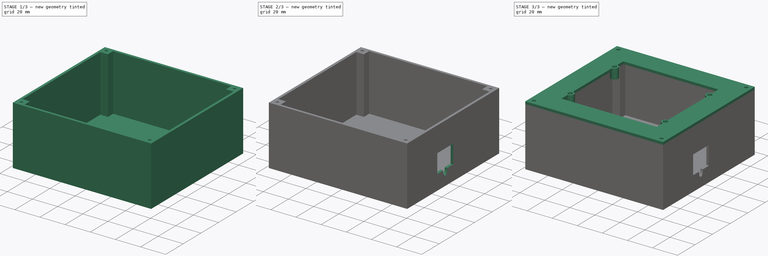
[diagram: build sequence overview — one tinted view per stage of 3, left to right]
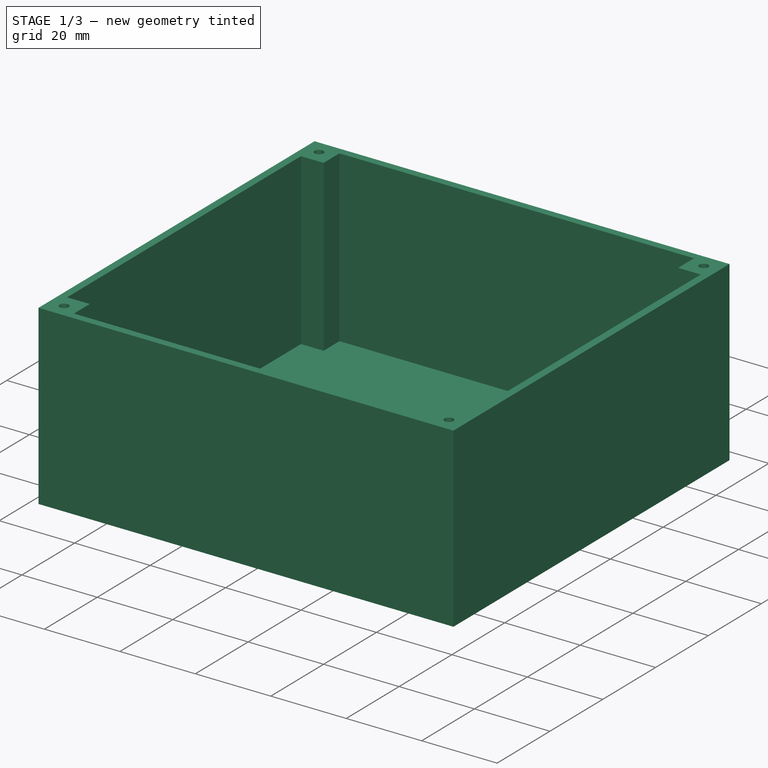
[diagram: stage 1 of 3 — iso view after this stage's code; geometry added in this stage tinted green]
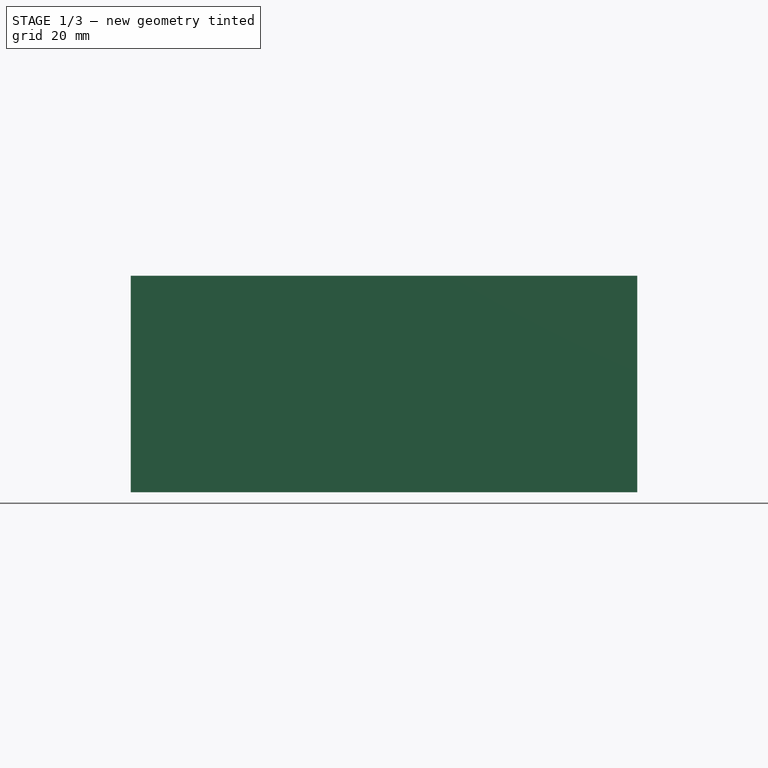
[diagram: stage 1 of 3 — front view after this stage's code; geometry added in this stage tinted green]
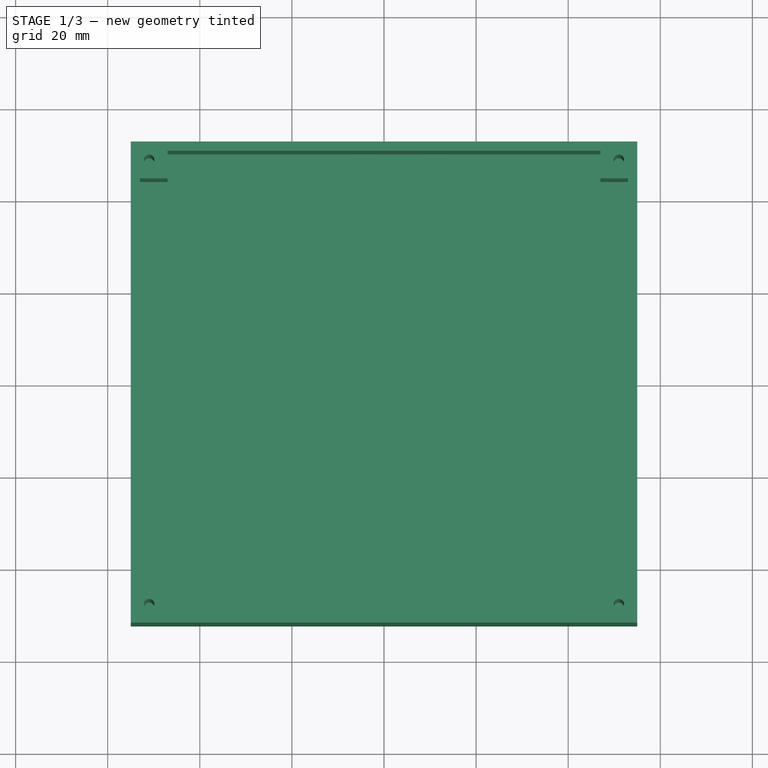
[diagram: stage 1 of 3 — top view after this stage's code; geometry added in this stage tinted green]
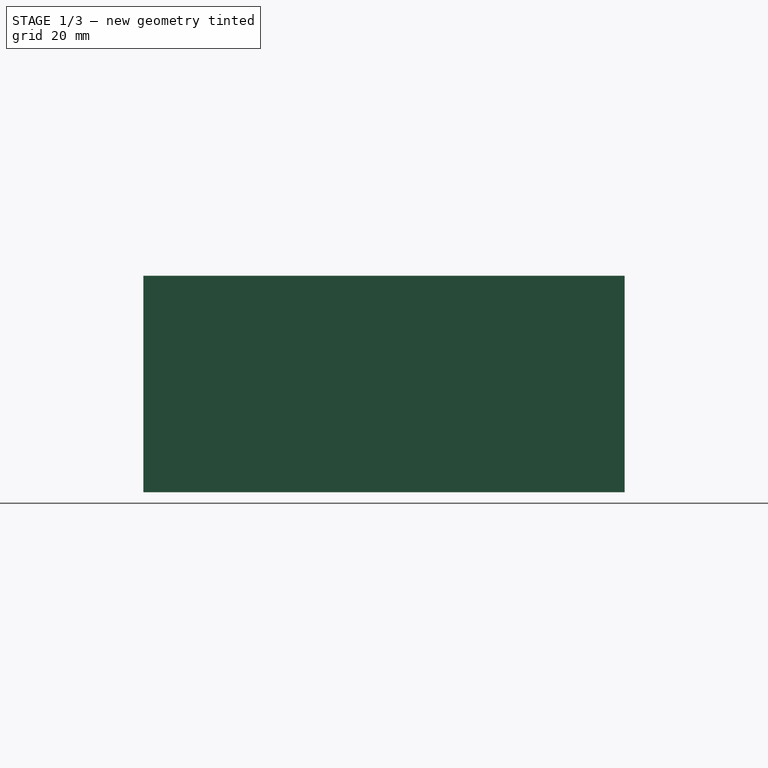
[diagram: stage 1 of 3 — right view after this stage's code; geometry added in this stage tinted green]
FCSTD DOCUMENT  (FreeCAD 0.19R20036 (Git))
Label: Keypad Box Rev A
License: All rights reserved
LicenseURL: http://en.wikipedia.org/wiki/All_rights_reserved
objects: Sketcher::SketchObject×5, PartDesign::Pad×4, PartDesign::Body×2, PartDesign::ShapeBinder×1, PartDesign::Pocket×1
note: 18 computed .brp shape members not serialized (recipe doc carries the construction recipe); baked Part::Feature solids carry a one-line shape summary decoded from their .brp

FEATURE [PartDesign::Body] Body  label="Faceplate"
  Group = -> [Sketch,Pad,Sketch001,Pad001]
  Origin = -> Origin
  Tip = -> Pad001
FEATURE [PartDesign::ShapeBinder] ShapeBinder
  Support = -> [Sketch]
  TraceSupport = false
FEATURE [Sketcher::SketchObject] Sketch002  label="Box Walls Profile"
  ExternalGeometry = -> [ShapeBinder]
  MapMode = 5
  Support = -> [XY_Plane001]
  sketch-geometry (24):
    g0: LineSegment StartX=-55 StartY=52.25 StartZ=0 EndX=55 EndY=52.25 EndZ=0
    g1: LineSegment StartX=55 StartY=52.25 StartZ=0 EndX=55 EndY=-52.25 EndZ=0
    g2: LineSegment StartX=55 StartY=-52.25 StartZ=0 EndX=-55 EndY=-52.25 EndZ=0
    g3: LineSegment StartX=-55 StartY=-52.25 StartZ=0 EndX=-55 EndY=52.25 EndZ=0
    g4: LineSegment StartX=47 StartY=50.25 StartZ=0 EndX=-47 EndY=50.25 EndZ=0
    g5: LineSegment StartX=-47 StartY=50.25 StartZ=0 EndX=-47 EndY=44.25 EndZ=0
    g6: LineSegment StartX=-47 StartY=44.25 StartZ=0 EndX=-53 EndY=44.25 EndZ=0
    g7: LineSegment StartX=-53 StartY=44.25 StartZ=0 EndX=-53 EndY=-44.25 EndZ=0
    g8: LineSegment StartX=-53 StartY=-44.25 StartZ=0 EndX=-47 EndY=-44.25 EndZ=0
    g9: LineSegment StartX=-47 StartY=-44.25 StartZ=0 EndX=-47 EndY=-50.25 EndZ=0
    g10: LineSegment StartX=-47 StartY=-50.25 StartZ=0 EndX=47 EndY=-50.25 EndZ=0
    g11: LineSegment StartX=47 StartY=-50.25 StartZ=0 EndX=47 EndY=-44.25 EndZ=0
    g12: LineSegment StartX=47 StartY=-44.25 StartZ=0 EndX=53 EndY=-44.25 EndZ=0
    g13: LineSegment StartX=53 StartY=-44.25 StartZ=0 EndX=53 EndY=44.25 EndZ=0
    g14: LineSegment StartX=53 StartY=44.25 StartZ=0 EndX=47 EndY=44.25 EndZ=0
    g15: LineSegment StartX=47 StartY=44.25 StartZ=0 EndX=47 EndY=50.25 EndZ=0
    g16: LineSegment [constr] StartX=-47 StartY=50.25 StartZ=0 EndX=-47 EndY=52.25 EndZ=0
    g17: LineSegment [constr] StartX=-53 StartY=44.25 StartZ=0 EndX=-55 EndY=44.25 EndZ=0
    g18: LineSegment [constr] StartX=53 StartY=-44.25 StartZ=0 EndX=55 EndY=-44.25 EndZ=0
    g19: LineSegment [constr] StartX=47 StartY=-50.25 StartZ=0 EndX=47 EndY=-52.25 EndZ=0
    g20: Circle CenterX=-51 CenterY=48.25 CenterZ=0 NormalX=0 NormalY=0 NormalZ=1 AngleXU=0 Radius=1.15
    g21: Circle CenterX=-51 CenterY=-48.25 CenterZ=0 NormalX=0 NormalY=0 NormalZ=1 AngleXU=0 Radius=1.15
    g22: Circle CenterX=51 CenterY=-48.25 CenterZ=0 NormalX=0 NormalY=0 NormalZ=1 AngleXU=0 Radius=1.15
    g23: Circle CenterX=51 CenterY=48.25 CenterZ=0 NormalX=0 NormalY=0 NormalZ=1 AngleXU=0 Radius=1.15
  constraints (65):
    c: Coincident(g0,g1)
    c: Coincident(g1,g2)
    c: Coincident(g2,g3)
    c: Coincident(g3,g0)
    c: Horizontal(g0)
    c: Horizontal(g2)
    c: Vertical(g1)
    c: Vertical(g3)
    c: Horizontal(g4)
    c: Vertical(g5)
    c: Coincident(g5,g6)
    c: Horizontal(g6)
    c: Coincident(g6,g7)
    c: Vertical(g7)
    c: Coincident(g7,g8)
    c: Horizontal(g8)
    c: Coincident(g8,g9)
    c: Vertical(g9)
    c: Coincident(g9,g10)
    c: Horizontal(g10)
    c: Coincident(g10,g11)
    c: Vertical(g11)
    c: Coincident(g11,g12)
    c: Horizontal(g12)
    c: Coincident(g12,g13)
    c: Vertical(g13)
    c: Coincident(g13,g14)
    c: Horizontal(g14)
    c: Coincident(g14,g15)
    c: Vertical(g15)
    c: Coincident(g4,g15)
    c: Equal(g15,g14)
    c: Equal(g5,g6)
    c: Equal(g8,g9)
    c: Equal(g12,g11)
    c: Equal(g12,g8)
    c: Equal(g8,g6)
    c: Equal(g6,g14)
    c: Coincident(g4,g5)
    c: Coincident(g16,g4)
    c: PointOnObject(g16,g0)
    c: Vertical(g16)
    c: Coincident(g17,g6)
    c: Horizontal(g17)
    c: Coincident(g18,g12)
    c: PointOnObject(g18,g1)
    c: Horizontal(g18)
    c: Coincident(g19,g10)
    c: PointOnObject(g19,g2)
    c: Vertical(g19)
    c: Equal(g16,g17)
    c: Equal(g17,g18)
    c: Equal(g18,g19)
    c: DistanceX(g17,g17) = 2
    c: Coincident(g-3,g0)
    c: Coincident(g-4,g1)
    c: Coincident(g20,g-5)
    c: Coincident(g21,g-8)
    c: Coincident(g22,g-7)
    c: Coincident(g23,g-6)
    c: Equal(g20,g21)
    c: Equal(g21,g22)
    c: Equal(g22,g23)
    c: Diameter(g20) = 2.3
    c: Symmetric(g0,g5,g20)
FEATURE [PartDesign::Pad] Pad002  label="Box Walls"
  Length = 45
  Length2 = 100
  Profile = -> Sketch002
  Reversed = true
  Type = 0
FEATURE [Sketcher::SketchObject] Sketch003  label="Box Base Profile"
  ExternalGeometry = -> [ShapeBinder]
  MapMode = 5
  Placement = pos=(0,0,-45) rot=(1,0,0;3.14159rad)
  Support = -> [Pad002]
  sketch-geometry (4):
    g0: LineSegment StartX=-55 StartY=-52.25 StartZ=0 EndX=55 EndY=-52.25 EndZ=0
    g1: LineSegment StartX=55 StartY=-52.25 StartZ=0 EndX=55 EndY=52.25 EndZ=0
    g2: LineSegment StartX=55 StartY=52.25 StartZ=0 EndX=-55 EndY=52.25 EndZ=0
    g3: LineSegment StartX=-55 StartY=52.25 StartZ=0 EndX=-55 EndY=-52.25 EndZ=0
  constraints (10):
    c: Coincident(g0,g1)
    c: Coincident(g1,g2)
    c: Coincident(g2,g3)
    c: Coincident(g3,g0)
    c: Horizontal(g0)
    c: Horizontal(g2)
    c: Vertical(g1)
    c: Vertical(g3)
    c: Coincident(g0,g-3)
    c: Coincident(g1,g-4)
FEATURE [PartDesign::Pad] Pad003  label="Box Floor"
  BaseFeature = -> Pad002
  Length = 2
  Length2 = 100
  Profile = -> Sketch003
  Type = 0
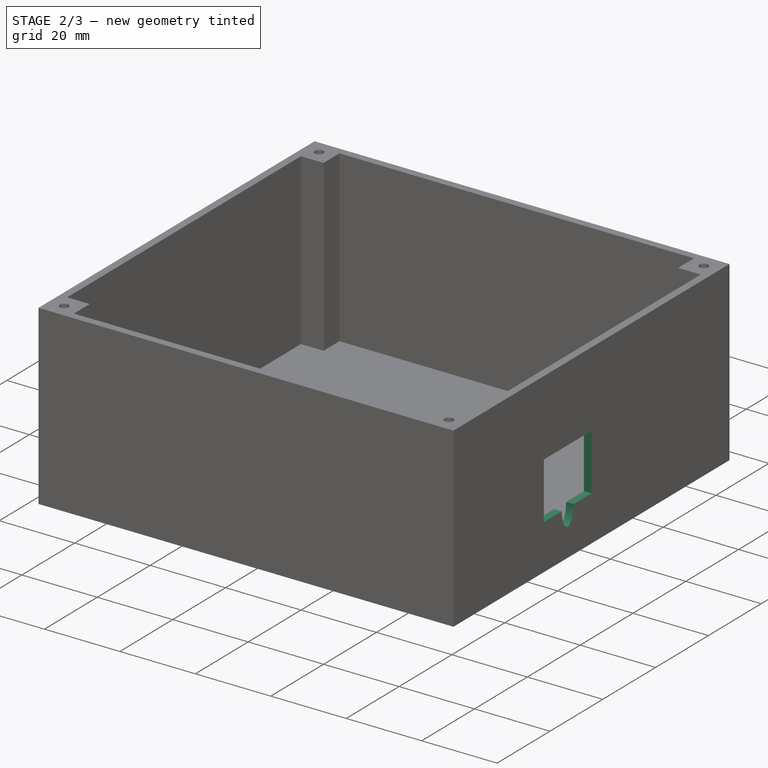
[diagram: stage 2 of 3 — iso view after this stage's code; geometry added in this stage tinted green]
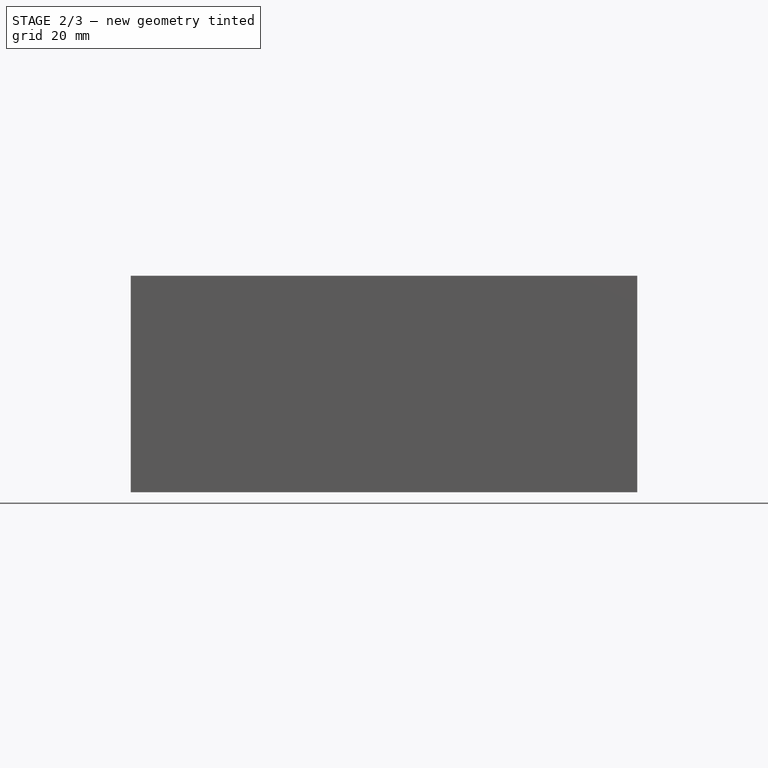
[diagram: stage 2 of 3 — front view after this stage's code; geometry added in this stage tinted green]
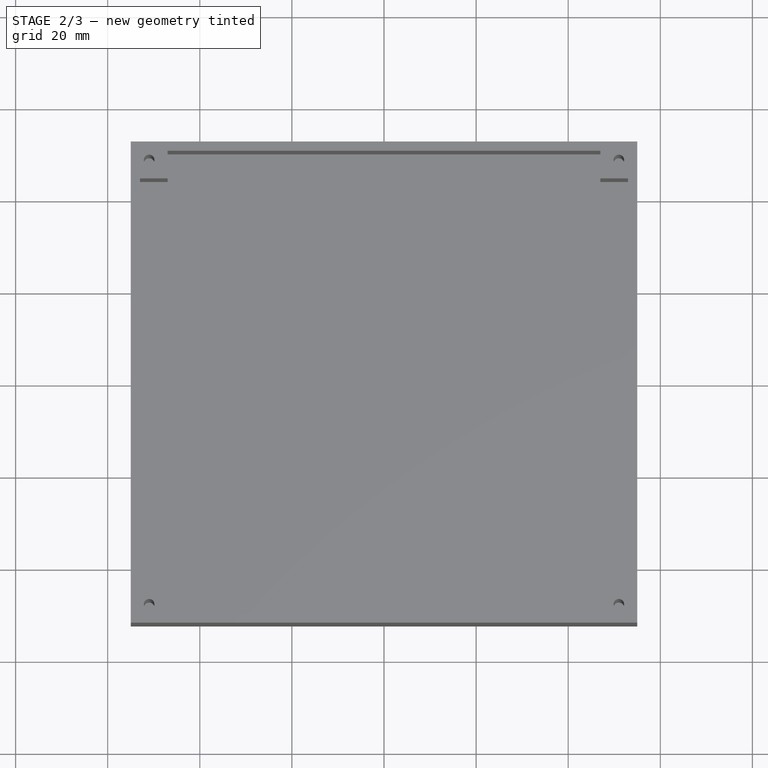
[diagram: stage 2 of 3 — top view after this stage's code; geometry added in this stage tinted green]
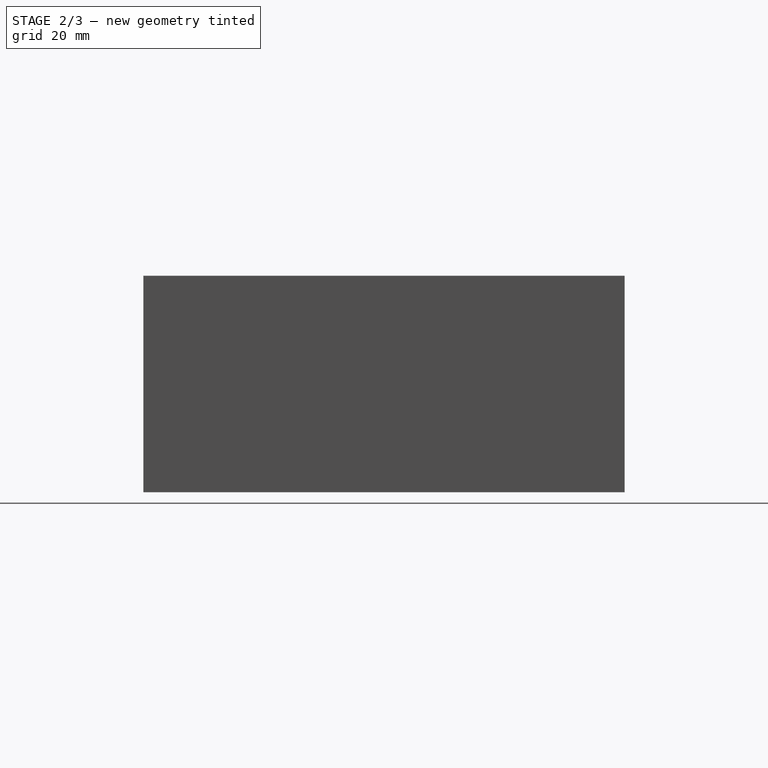
[diagram: stage 2 of 3 — right view after this stage's code; geometry added in this stage tinted green]
FEATURE [Sketcher::SketchObject] Sketch004  label="Cable Cutout Profile"
  MapMode = 5
  Placement = pos=(0,0,0) rot=(0.57735,0.57735,0.57735;2.0944rad)
  Support = -> [YZ_Plane001]
  sketch-geometry (10):
    g0: LineSegment StartX=-18 StartY=-20 StartZ=0 EndX=0 EndY=-20 EndZ=0
    g1: LineSegment StartX=0 StartY=-20 StartZ=0 EndX=0 EndY=-35 EndZ=0
    g2: LineSegment StartX=-18 StartY=-35 StartZ=0 EndX=-18 EndY=-20 EndZ=0
    g3: LineSegment StartX=-18 StartY=-35 StartZ=0 EndX=-11.25 EndY=-35 EndZ=0
    g4: LineSegment StartX=0 StartY=-35 StartZ=0 EndX=-6.75 EndY=-35 EndZ=0
    g5: ArcOfEllipse CenterX=-9 CenterY=-35 CenterZ=0 NormalX=0 NormalY=0 NormalZ=1 MajorRadius=4.5 MinorRadius=2.25 AngleXU=1.5708 StartAngle=1.5708 EndAngle=4.71239
    g6: LineSegment [constr] StartX=-9 StartY=-30.5 StartZ=0 EndX=-9 EndY=-39.5 EndZ=0
    g7: LineSegment [constr] StartX=-11.25 StartY=-35 StartZ=0 EndX=-6.75 EndY=-35 EndZ=0
    g8: GeomPoint X=-9 Y=-31.1029 Z=0
    g9: GeomPoint X=-9 Y=-38.8971 Z=0
  constraints (22):
    c: Coincident(g0,g1)
    c: Coincident(g2,g0)
    c: Horizontal(g0)
    c: Vertical(g1)
    c: Vertical(g2)
    c: DistanceY(g0,g-1) = 20
    c: DistanceY(g2,g-1) = 35
    c: PointOnObject(g0,g-2)
    c: DistanceX(g2,g1) = 18
    c: Coincident(g3,g2)
    c: Horizontal(g3)
    c: Coincident(g4,g1)
    c: Horizontal(g4)
    c: InternalAlignment(g6-g9 -> g5) x4
    c: Equal(g4,g3)
    c: Coincident(g7,g4)
    c: Coincident(g3,g7)
    c: Coincident(g5,g4)
    c: DistanceX(g7,g7) = 4.5
    c: Vertical(g6)
    c: DistanceY(g6,g5) = 4.5
    c: Coincident(g5,g3)
FEATURE [PartDesign::Pocket] Pocket  label="Cable Cutout"
  BaseFeature = -> Pad003
  Length = 5
  Length2 = 100
  Profile = -> Sketch004
  Reversed = true
  Type = 1
FEATURE [PartDesign::Body] Body001  label="Box"
  Group = -> [Sketch002,ShapeBinder,Pad002,Sketch003,Pad003,Sketch004,Pocket]
  Origin = -> Origin001
  Tip = -> Pocket
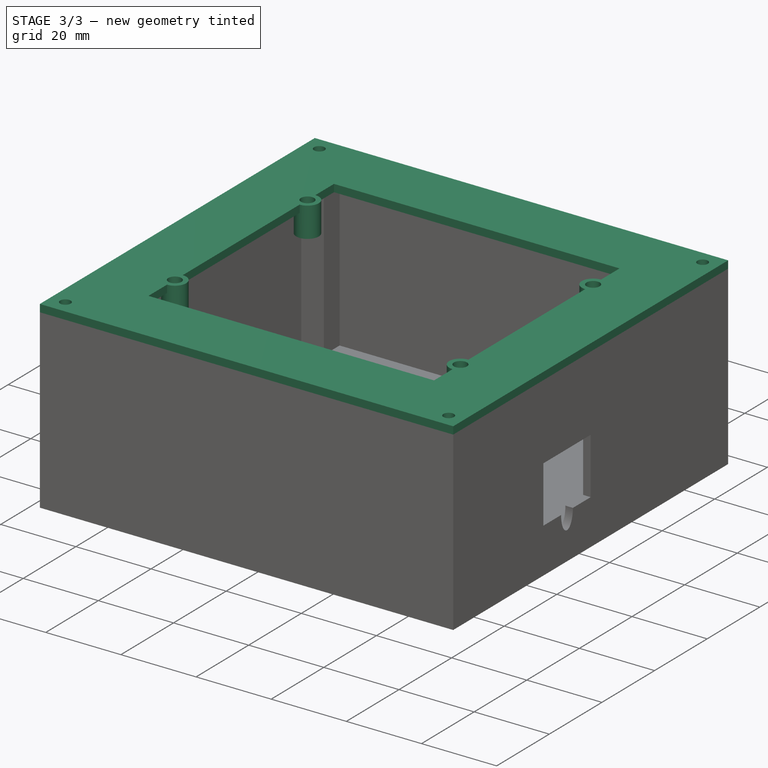
[diagram: stage 3 of 3 — iso view after this stage's code; geometry added in this stage tinted green]
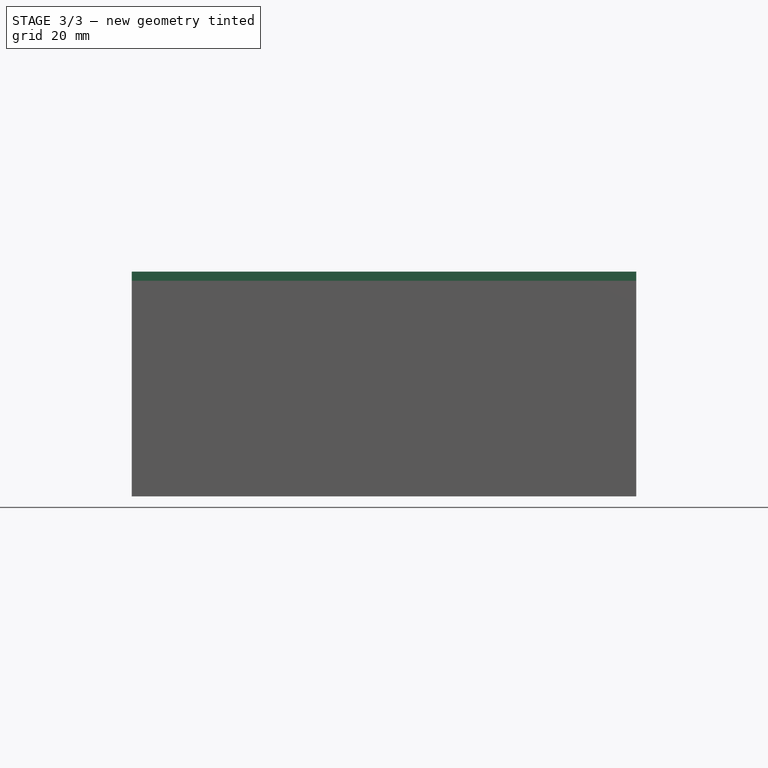
[diagram: stage 3 of 3 — front view after this stage's code; geometry added in this stage tinted green]
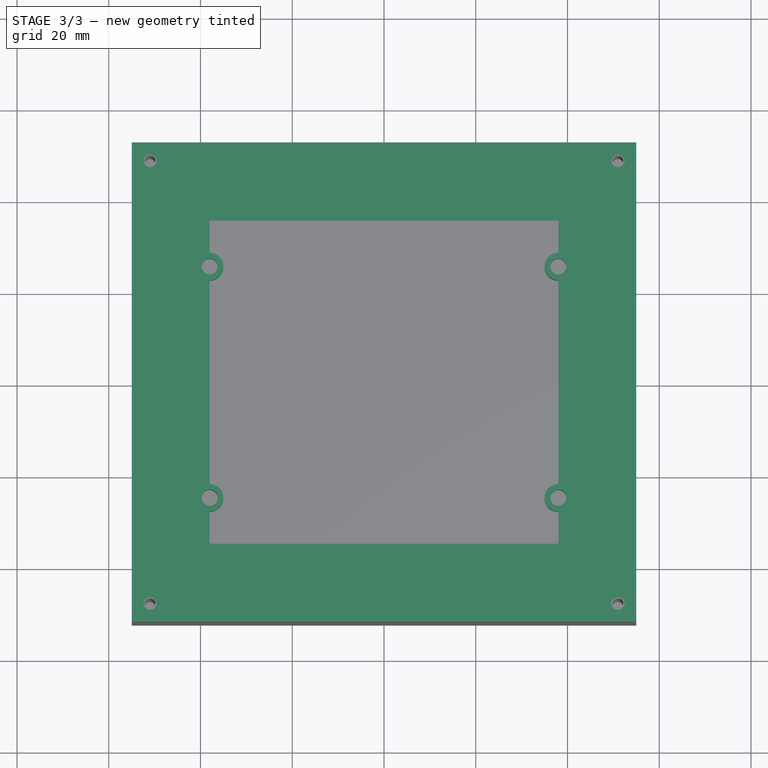
[diagram: stage 3 of 3 — top view after this stage's code; geometry added in this stage tinted green]
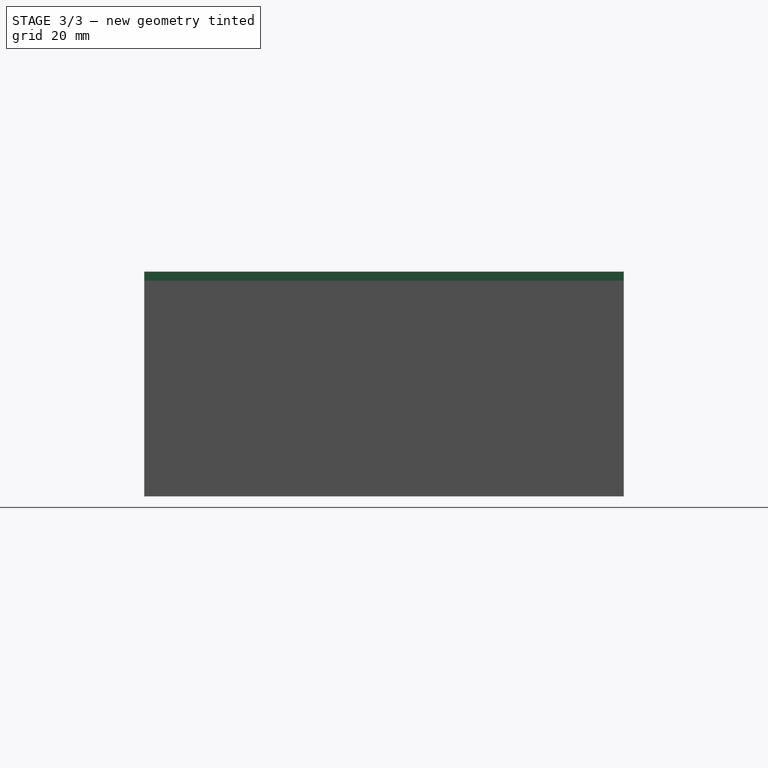
[diagram: stage 3 of 3 — right view after this stage's code; geometry added in this stage tinted green]
FEATURE [Sketcher::SketchObject] Sketch  label="Outer Frame Profile"
  MapMode = 5
  Support = -> [XY_Plane]
  sketch-geometry (35):
    g0: Circle CenterX=-38 CenterY=25.2 CenterZ=0 NormalX=0 NormalY=0 NormalZ=1 AngleXU=0 Radius=1.75
    g1: Circle CenterX=38 CenterY=25.2 CenterZ=0 NormalX=0 NormalY=0 NormalZ=1 AngleXU=0 Radius=1.75
    g2: Circle CenterX=-38 CenterY=-25.2 CenterZ=0 NormalX=0 NormalY=0 NormalZ=1 AngleXU=0 Radius=1.75
    g3: Circle CenterX=38 CenterY=-25.2 CenterZ=0 NormalX=0 NormalY=0 NormalZ=1 AngleXU=0 Radius=1.75
    g4: LineSegment [constr] StartX=-38 StartY=25.2 StartZ=0 EndX=38 EndY=25.2 EndZ=0
    g5: LineSegment [constr] StartX=-38 StartY=25.2 StartZ=0 EndX=-38 EndY=-25.2 EndZ=0
    g6: LineSegment [constr] StartX=-38 StartY=-25.2 StartZ=0 EndX=38 EndY=-25.2 EndZ=0
    g7: LineSegment StartX=38 StartY=28.2 StartZ=0 EndX=38 EndY=35.25 EndZ=0
    g8: LineSegment StartX=38 StartY=35.25 StartZ=0 EndX=-38 EndY=35.25 EndZ=0
    g9: LineSegment StartX=-38 StartY=35.25 StartZ=0 EndX=-38 EndY=28.2 EndZ=0
    g10: LineSegment StartX=-55 StartY=52.25 StartZ=0 EndX=55 EndY=52.25 EndZ=0
    g11: LineSegment StartX=55 StartY=52.25 StartZ=0 EndX=55 EndY=-52.25 EndZ=0
    g12: LineSegment StartX=55 StartY=-52.25 StartZ=0 EndX=-55 EndY=-52.25 EndZ=0
    g13: LineSegment StartX=-55 StartY=-52.25 StartZ=0 EndX=-55 EndY=52.25 EndZ=0
    g14: ArcOfCircle CenterX=-38 CenterY=25.2 CenterZ=0 NormalX=0 NormalY=0 NormalZ=1 AngleXU=0 Radius=3 StartAngle=4.71239 EndAngle=7.85398
    g15: LineSegment StartX=-38 StartY=22.2 StartZ=0 EndX=-38 EndY=-22.2 EndZ=0
    g16: LineSegment StartX=-38 StartY=-35.25 StartZ=0 EndX=38 EndY=-35.25 EndZ=0
    g17: LineSegment StartX=-38 StartY=-35.25 StartZ=0 EndX=-38 EndY=-28.2 EndZ=0
    g18: ArcOfCircle CenterX=-38 CenterY=-25.2 CenterZ=0 NormalX=0 NormalY=0 NormalZ=1 AngleXU=0 Radius=3 StartAngle=4.71239 EndAngle=7.85398
    g19: LineSegment StartX=38 StartY=-35.25 StartZ=0 EndX=38 EndY=-28.2 EndZ=0
    g20: LineSegment StartX=38 StartY=22.2 StartZ=0 EndX=38 EndY=-22.2 EndZ=0
    g21: ArcOfCircle CenterX=38 CenterY=25.2 CenterZ=0 NormalX=0 NormalY=0 NormalZ=1 AngleXU=0 Radius=3 StartAngle=1.5708 EndAngle=4.71239
    g22: ArcOfCircle CenterX=38 CenterY=-25.2 CenterZ=0 NormalX=0 NormalY=0 NormalZ=1 AngleXU=0 Radius=3 StartAngle=1.5708 EndAngle=4.71239
    g23: LineSegment [constr] StartX=-38 StartY=35.25 StartZ=0 EndX=-38 EndY=52.25 EndZ=0
    g24: LineSegment [constr] StartX=-38 StartY=35.25 StartZ=0 EndX=-55 EndY=35.25 EndZ=0
    g25: LineSegment [constr] StartX=38 StartY=-35.25 StartZ=0 EndX=55 EndY=-35.25 EndZ=0
    g26: LineSegment [constr] StartX=38 StartY=-35.25 StartZ=0 EndX=38 EndY=-52.25 EndZ=0
    g27: Circle CenterX=-51 CenterY=48.25 CenterZ=0 NormalX=0 NormalY=0 NormalZ=1 AngleXU=0 Radius=1.4
    g28: Circle CenterX=51 CenterY=48.25 CenterZ=0 NormalX=0 NormalY=0 NormalZ=1 AngleXU=0 Radius=1.4
    g29: Circle CenterX=-51 CenterY=-48.25 CenterZ=0 NormalX=0 NormalY=0 NormalZ=1 AngleXU=0 Radius=1.4
    g30: Circle CenterX=51 CenterY=-48.25 CenterZ=0 NormalX=0 NormalY=0 NormalZ=1 AngleXU=0 Radius=1.4
    g31: LineSegment [constr] StartX=-51 StartY=48.25 StartZ=0 EndX=-51 EndY=52.25 EndZ=0
    g32: LineSegment [constr] StartX=-51 StartY=48.25 StartZ=0 EndX=-55 EndY=48.25 EndZ=0
    g33: LineSegment [constr] StartX=51 StartY=-48.25 StartZ=0 EndX=51 EndY=-52.25 EndZ=0
    g34: LineSegment [constr] StartX=51 StartY=-48.25 StartZ=0 EndX=55 EndY=-48.25 EndZ=0
  constraints (101):
    c: Equal(g0,g1)
    c: Equal(g1,g3)
    c: Equal(g3,g2)
    c: Symmetric(g0,g3,g-1)
    c: Coincident(g4,g0)
    c: Coincident(g4,g1)
    c: Horizontal(g4)
    c: Coincident(g5,g0)
    c: Coincident(g5,g2)
    c: Vertical(g5)
    c: Coincident(g6,g2)
    c: Coincident(g6,g3)
    c: Horizontal(g6)
    c: Equal(g6,g4)
    c: DistanceX(g6,g6) = 76
    c: DistanceY(g5,g5) = 50.4
    c: Vertical(g7)
    c: Coincident(g7,g8)
    c: Horizontal(g8)
    c: Coincident(g8,g9)
    c: Vertical(g9)
    c: Coincident(g10,g11)
    c: Coincident(g11,g12)
    c: Coincident(g12,g13)
    c: Coincident(g13,g10)
    c: Horizontal(g10)
    c: Horizontal(g12)
    c: Vertical(g11)
    c: Vertical(g13)
    c: Coincident(g14,g0)
    c: Coincident(g14,g9)
    c: PointOnObject(g14,g5)
    c: Coincident(g15,g14)
    c: PointOnObject(g15,g5)
    c: Vertical(g9,g0)
    c: Horizontal(g16)
    c: Vertical(g2,g16)
    c: Coincident(g17,g16)
    c: Vertical(g17)
    c: Coincident(g18,g2)
    c: Coincident(g18,g15)
    c: Coincident(g18,g17)
    c: Coincident(g19,g16)
    c: Vertical(g19)
    c: Vertical(g3,g19)
    c: Vertical(g20)
    c: Vertical(g1,g20)
    c: Coincident(g21,g1)
    c: Coincident(g21,g7)
    c: Coincident(g21,g20)
    c: Vertical(g1,g7)
    c: Coincident(g22,g3)
    c: Coincident(g22,g20)
    c: Coincident(g22,g19)
    c: Equal(g21,g22)
    c: Equal(g22,g14)
    c: Equal(g14,g18)
    c: Equal(g17,g9)
    c: DistanceY(g16,g7) = 70.5
    c: Vertical(g23)
    c: Coincident(g24,g8)
    c: PointOnObject(g24,g13)
    c: Horizontal(g24)
    c: PointOnObject(g23,g10)
    c: Equal(g23,g24)
    c: DistanceY(g23,g23) = 17
    c: Coincident(g23,g8)
    c: Coincident(g25,g16)
    c: PointOnObject(g25,g11)
    c: Horizontal(g25)
    c: Coincident(g26,g16)
    c: PointOnObject(g26,g12)
    c: Vertical(g26)
    c: Diameter(g14) = 6
    c: Equal(g25,g26)
    c: DistanceX(g25,g25) = 17
    c: Equal(g27,g28)
    c: Equal(g28,g30)
    c: Equal(g30,g29)
    c: Diameter(g28) = 2.8
    c: Coincident(g31,g27)
    c: PointOnObject(g31,g10)
    c: Vertical(g31)
    c: Coincident(g32,g27)
    c: PointOnObject(g32,g13)
    c: Horizontal(g32)
    c: Equal(g31,g32)
    c: DistanceY(g31,g31) = 4
    c: Horizontal(g28,g27)
    c: Vertical(g27,g29)
    c: Coincident(g33,g30)
    c: PointOnObject(g33,g12)
    c: Vertical(g33)
    c: Coincident(g34,g30)
    c: PointOnObject(g34,g11)
    c: Horizontal(g34)
    c: Equal(g34,g33)
    c: Equal(g33,g31)
    c: Vertical(g28,g30)
    c: Horizontal(g30,g29)
    c: Diameter(g0) = 3.5
FEATURE [PartDesign::Pad] Pad  label="Outer Frame"
  Length = 2
  Length2 = 100
  Profile = -> Sketch
  Type = 0
FEATURE [Sketcher::SketchObject] Sketch001  label="Screw Standoff Profile"
  ExternalGeometry = -> [Sketch]
  MapMode = 5
  Support = -> [XY_Plane]
  sketch-geometry (8):
    g0: Circle CenterX=-38 CenterY=25.2 CenterZ=0 NormalX=0 NormalY=0 NormalZ=1 AngleXU=0 Radius=3
    g1: Circle CenterX=38 CenterY=-25.2 CenterZ=0 NormalX=0 NormalY=0 NormalZ=1 AngleXU=0 Radius=3
    g2: Circle CenterX=-38 CenterY=-25.2 CenterZ=0 NormalX=0 NormalY=0 NormalZ=1 AngleXU=0 Radius=3
    g3: Circle CenterX=38 CenterY=25.2 CenterZ=0 NormalX=0 NormalY=0 NormalZ=1 AngleXU=0 Radius=3
    g4: Circle CenterX=-38 CenterY=25.2 CenterZ=0 NormalX=0 NormalY=0 NormalZ=1 AngleXU=0 Radius=1.75
    g5: Circle CenterX=-38 CenterY=-25.2 CenterZ=0 NormalX=0 NormalY=0 NormalZ=1 AngleXU=0 Radius=1.75
    g6: Circle CenterX=38 CenterY=-25.2 CenterZ=0 NormalX=0 NormalY=0 NormalZ=1 AngleXU=0 Radius=1.75
    g7: Circle CenterX=38 CenterY=25.2 CenterZ=0 NormalX=0 NormalY=0 NormalZ=1 AngleXU=0 Radius=1.75
  constraints (16):
    c: Coincident(g0,g-3)
    c: PointOnObject(g-3,g0)
    c: PointOnObject(g-5,g1)
    c: Coincident(g1,g-5)
    c: PointOnObject(g-6,g2)
    c: Coincident(g2,g-6)
    c: Coincident(g3,g-4)
    c: PointOnObject(g-4,g3)
    c: Coincident(g4,g0)
    c: Equal(g-7,g4)
    c: Coincident(g5,g2)
    c: Equal(g5,g-8)
    c: Coincident(g6,g1)
    c: Coincident(g7,g3)
    c: Equal(g7,g-10)
    c: Equal(g6,g-9)
FEATURE [PartDesign::Pad] Pad001  label="Screw Standoffs"
  BaseFeature = -> Pad
  Length = 6
  Length2 = 100
  Profile = -> Sketch001
  Refine = true
  Reversed = true
  Type = 0
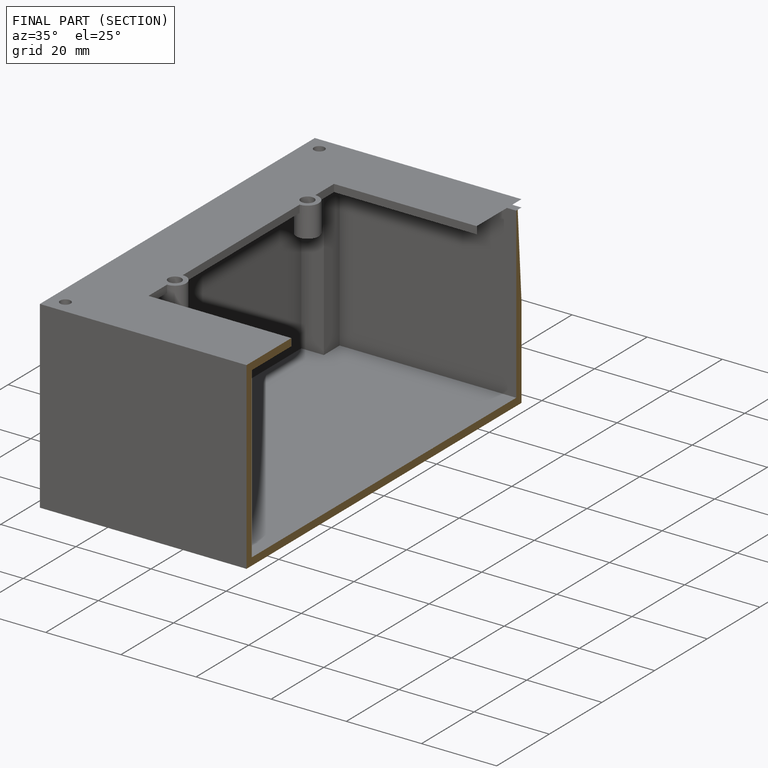
[diagram: finished part — half-section view (interior)]
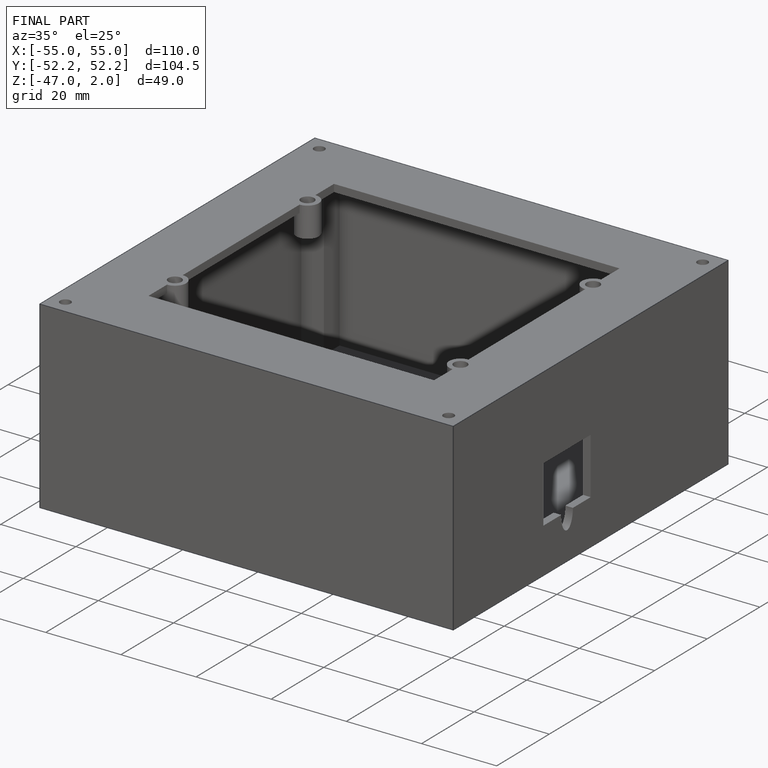
[diagram: finished part — iso view with bounding-box wireframe]
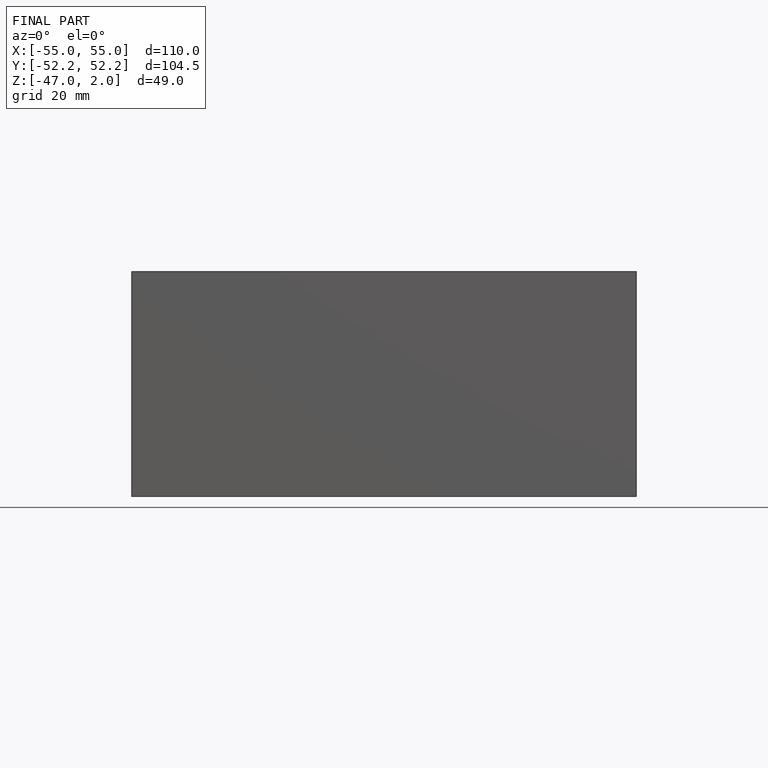
[diagram: finished part — front view with bounding-box wireframe]
